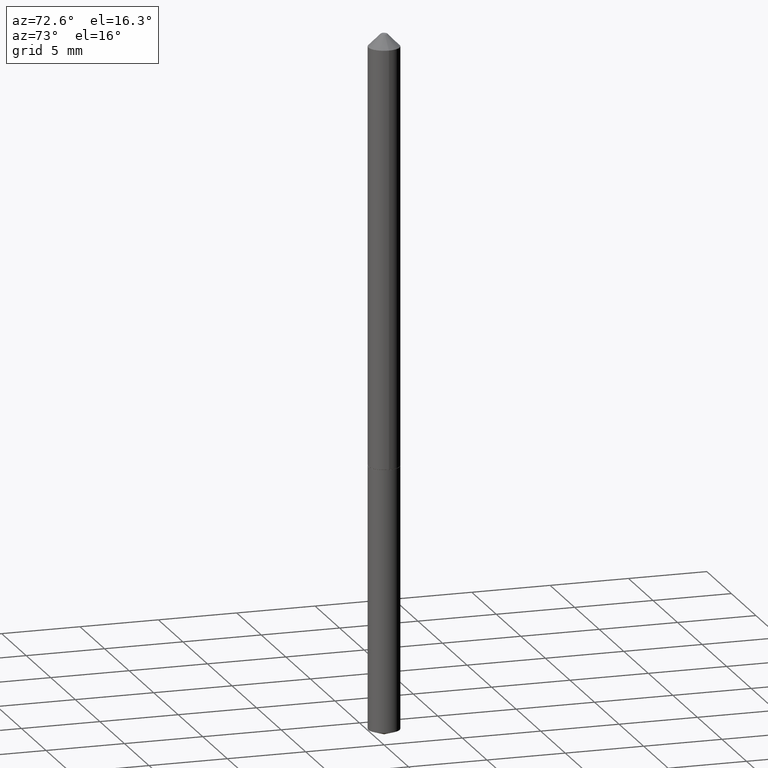
[diagram: clean part render]
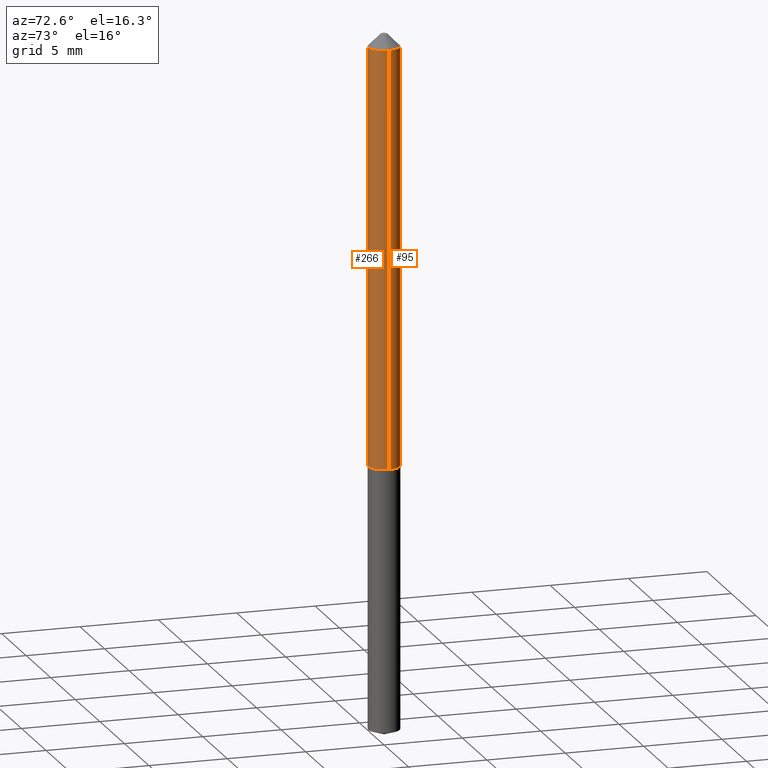
[diagram: same view with one multi-face feature highlighted, each face labeled with its STEP entity id]
A machine part, auxiliary view. The highlighted faces form ONE feature: a constant-radius fillet chain: 2 tangent blend faces with common blend radius 0.997 mm. The faces share edges in the B-rep.
Their STEP definitions:
[1] entity #95 (Cylinder):
#5 = DIRECTION ( 'NONE',  ( 1.000000000000000000, -6.982962677686266711E-15, 4.876176775795935232E-29 ) ) ;
#32 = ORIENTED_EDGE ( 'NONE', *, *, #168, .T. ) ;
#57 = CARTESIAN_POINT ( 'NONE',  ( 0.03925000000000013201, -4.037898168372097104E-15, -1.077999999999999847 ) ) ;
#61 = CIRCLE ( 'NONE', #153, 0.03925000000000000017 ) ;
#95 = ADVANCED_FACE ( 'NONE', ( #144 ), #376, .T. ) ;
#100 = CARTESIAN_POINT ( 'NONE',  ( -0.03925000000000013201, -3.484928859487070232E-15, -1.077999999999999847 ) ) ;
#102 = VERTEX_POINT ( 'NONE', #100 ) ;
#103 = DIRECTION ( 'NONE',  ( -2.445468806185136597E-29, 3.491481338843145583E-15, 1.000000000000000000 ) ) ;
#113 = VECTOR ( 'NONE', #203, 39.37007874015748143 ) ;
#137 = VERTEX_POINT ( 'NONE', #317 ) ;
#139 = CIRCLE ( 'NONE', #229, 0.03925000000000013201 ) ;
#144 = FACE_OUTER_BOUND ( 'NONE', #247, .T. ) ;
#148 = CARTESIAN_POINT ( 'NONE',  ( 0.03925000000000006956, -2.740812850991864634E-16, 1.913899384499908036E-30 ) ) ;
#151 = VERTEX_POINT ( 'NONE', #381 ) ;
#153 = AXIS2_PLACEMENT_3D ( 'NONE', #368, #103, #223 ) ;
#154 = DIRECTION ( 'NONE',  ( -2.445468806185136597E-29, 3.491481338843145583E-15, 1.000000000000000000 ) ) ;
#156 = DIRECTION ( 'NONE',  ( -2.445468806185136877E-29, 3.491481338843145188E-15, 1.000000000000000000 ) ) ;
#165 = AXIS2_PLACEMENT_3D ( 'NONE', #227, #315, #5 ) ;
#168 = EDGE_CURVE ( 'NONE', #102, #151, #300, .T. ) ;
#176 = LINE ( 'NONE', #148, #113 ) ;
#183 = ORIENTED_EDGE ( 'NONE', *, *, #212, .F. ) ;
#203 = DIRECTION ( 'NONE',  ( -2.445468806185136877E-29, 3.491481338843145188E-15, 1.000000000000000000 ) ) ;
#212 = EDGE_CURVE ( 'NONE', #260, #137, #176, .T. ) ;
#223 = DIRECTION ( 'NONE',  ( 1.000000000000000000, -6.982962677686266711E-15, 0.000000000000000000 ) ) ;
#227 = CARTESIAN_POINT ( 'NONE',  ( 0.000000000000000000, 0.000000000000000000, 0.000000000000000000 ) ) ;
#229 = AXIS2_PLACEMENT_3D ( 'NONE', #352, #154, #233 ) ;
#232 = CARTESIAN_POINT ( 'NONE',  ( -0.03925000000000006956, 2.788880237858398172E-16, -1.930682022925053676E-30 ) ) ;
#233 = DIRECTION ( 'NONE',  ( 1.000000000000000000, -6.982962677686265922E-15, 0.000000000000000000 ) ) ;
#247 = EDGE_LOOP ( 'NONE', ( #369, #32, #310, #183 ) ) ;
#260 = VERTEX_POINT ( 'NONE', #57 ) ;
#270 = VECTOR ( 'NONE', #156, 39.37007874015748143 ) ;
#275 = EDGE_CURVE ( 'NONE', #260, #102, #139, .T. ) ;
#300 = LINE ( 'NONE', #232, #270 ) ;
#310 = ORIENTED_EDGE ( 'NONE', *, *, #389, .F. ) ;
#315 = DIRECTION ( 'NONE',  ( -2.445468806185136597E-29, 3.491481338843145583E-15, 1.000000000000000000 ) ) ;
#317 = CARTESIAN_POINT ( 'NONE',  ( 0.03925000000000000017, -3.831900769380349724E-16, -0.03125000000000020123 ) ) ;
#352 = CARTESIAN_POINT ( 'NONE',  ( 2.636215373067577193E-29, -3.763816883272910789E-15, -1.077999999999999847 ) ) ;
#368 = CARTESIAN_POINT ( 'NONE',  ( 7.642090019328601786E-31, -1.091087918388490144E-16, -0.03125000000000020123 ) ) ;
#369 = ORIENTED_EDGE ( 'NONE', *, *, #275, .T. ) ;
#376 = CYLINDRICAL_SURFACE ( 'NONE', #165, 0.03925000000000006956 ) ;
#381 = CARTESIAN_POINT ( 'NONE',  ( -0.03925000000000000017, -1.657574813770038402E-15, -0.03125000000000020123 ) ) ;
#389 = EDGE_CURVE ( 'NONE', #137, #151, #61, .T. ) ;
[2] entity #266 (Cylinder):
#3 = EDGE_LOOP ( 'NONE', ( #8, #131, #60, #136 ) ) ;
#8 = ORIENTED_EDGE ( 'NONE', *, *, #168, .F. ) ;
#53 = AXIS2_PLACEMENT_3D ( 'NONE', #272, #303, #386 ) ;
#57 = CARTESIAN_POINT ( 'NONE',  ( 0.03925000000000013201, -4.037898168372097104E-15, -1.077999999999999847 ) ) ;
#60 = ORIENTED_EDGE ( 'NONE', *, *, #212, .T. ) ;
#74 = DIRECTION ( 'NONE',  ( 1.000000000000000000, -6.982962677686266711E-15, 0.000000000000000000 ) ) ;
#86 = DIRECTION ( 'NONE',  ( -2.445468806185136597E-29, 3.491481338843145583E-15, 1.000000000000000000 ) ) ;
#97 = CIRCLE ( 'NONE', #53, 0.03925000000000013201 ) ;
#99 = EDGE_CURVE ( 'NONE', #151, #137, #336, .T. ) ;
#100 = CARTESIAN_POINT ( 'NONE',  ( -0.03925000000000013201, -3.484928859487070232E-15, -1.077999999999999847 ) ) ;
#102 = VERTEX_POINT ( 'NONE', #100 ) ;
#113 = VECTOR ( 'NONE', #203, 39.37007874015748143 ) ;
#131 = ORIENTED_EDGE ( 'NONE', *, *, #192, .T. ) ;
#134 = CARTESIAN_POINT ( 'NONE',  ( 7.642090019328601786E-31, -1.091087918388490144E-16, -0.03125000000000020123 ) ) ;
#136 = ORIENTED_EDGE ( 'NONE', *, *, #99, .F. ) ;
#137 = VERTEX_POINT ( 'NONE', #317 ) ;
#148 = CARTESIAN_POINT ( 'NONE',  ( 0.03925000000000006956, -2.740812850991864634E-16, 1.913899384499908036E-30 ) ) ;
#151 = VERTEX_POINT ( 'NONE', #381 ) ;
#156 = DIRECTION ( 'NONE',  ( -2.445468806185136877E-29, 3.491481338843145188E-15, 1.000000000000000000 ) ) ;
#168 = EDGE_CURVE ( 'NONE', #102, #151, #300, .T. ) ;
#176 = LINE ( 'NONE', #148, #113 ) ;
#192 = EDGE_CURVE ( 'NONE', #102, #260, #97, .T. ) ;
#203 = DIRECTION ( 'NONE',  ( -2.445468806185136877E-29, 3.491481338843145188E-15, 1.000000000000000000 ) ) ;
#212 = EDGE_CURVE ( 'NONE', #260, #137, #176, .T. ) ;
#232 = CARTESIAN_POINT ( 'NONE',  ( -0.03925000000000006956, 2.788880237858398172E-16, -1.930682022925053676E-30 ) ) ;
#234 = AXIS2_PLACEMENT_3D ( 'NONE', #134, #345, #74 ) ;
#260 = VERTEX_POINT ( 'NONE', #57 ) ;
#266 = ADVANCED_FACE ( 'NONE', ( #295 ), #276, .T. ) ;
#270 = VECTOR ( 'NONE', #156, 39.37007874015748143 ) ;
#272 = CARTESIAN_POINT ( 'NONE',  ( 2.636215373067577193E-29, -3.763816883272910789E-15, -1.077999999999999847 ) ) ;
#274 = DIRECTION ( 'NONE',  ( 1.000000000000000000, -6.982962677686266711E-15, 4.876176775795935232E-29 ) ) ;
#276 = CYLINDRICAL_SURFACE ( 'NONE', #385, 0.03925000000000006956 ) ;
#295 = FACE_OUTER_BOUND ( 'NONE', #3, .T. ) ;
#300 = LINE ( 'NONE', #232, #270 ) ;
#303 = DIRECTION ( 'NONE',  ( -2.445468806185136597E-29, 3.491481338843145583E-15, 1.000000000000000000 ) ) ;
#317 = CARTESIAN_POINT ( 'NONE',  ( 0.03925000000000000017, -3.831900769380349724E-16, -0.03125000000000020123 ) ) ;
#336 = CIRCLE ( 'NONE', #234, 0.03925000000000000017 ) ;
#345 = DIRECTION ( 'NONE',  ( -2.445468806185136597E-29, 3.491481338843145583E-15, 1.000000000000000000 ) ) ;
#356 = CARTESIAN_POINT ( 'NONE',  ( 0.000000000000000000, 0.000000000000000000, 0.000000000000000000 ) ) ;
#381 = CARTESIAN_POINT ( 'NONE',  ( -0.03925000000000000017, -1.657574813770038402E-15, -0.03125000000000020123 ) ) ;
#385 = AXIS2_PLACEMENT_3D ( 'NONE', #356, #86, #274 ) ;
#386 = DIRECTION ( 'NONE',  ( 1.000000000000000000, -6.982962677686265922E-15, 0.000000000000000000 ) ) ;